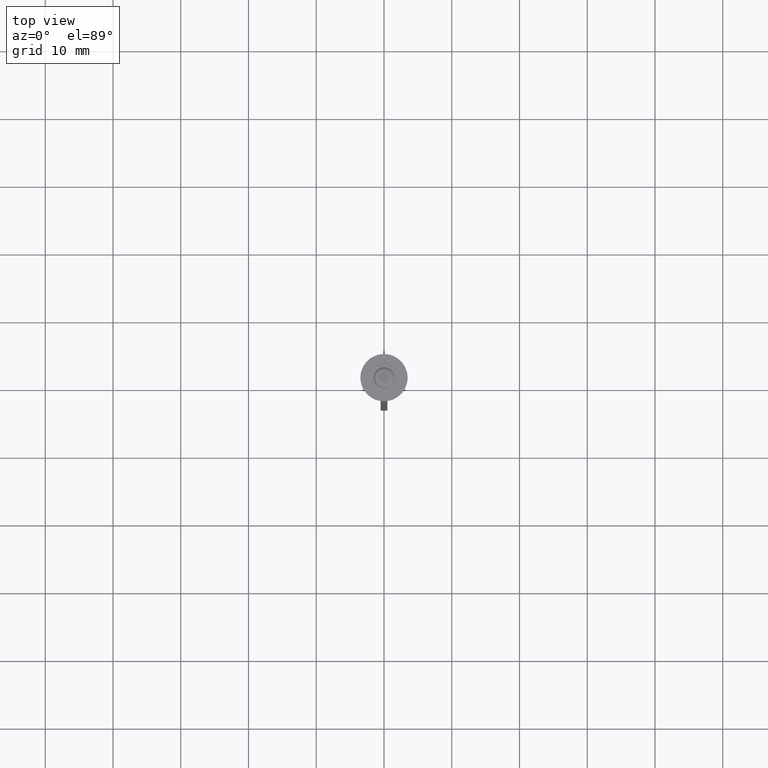
[diagram: clean part render]
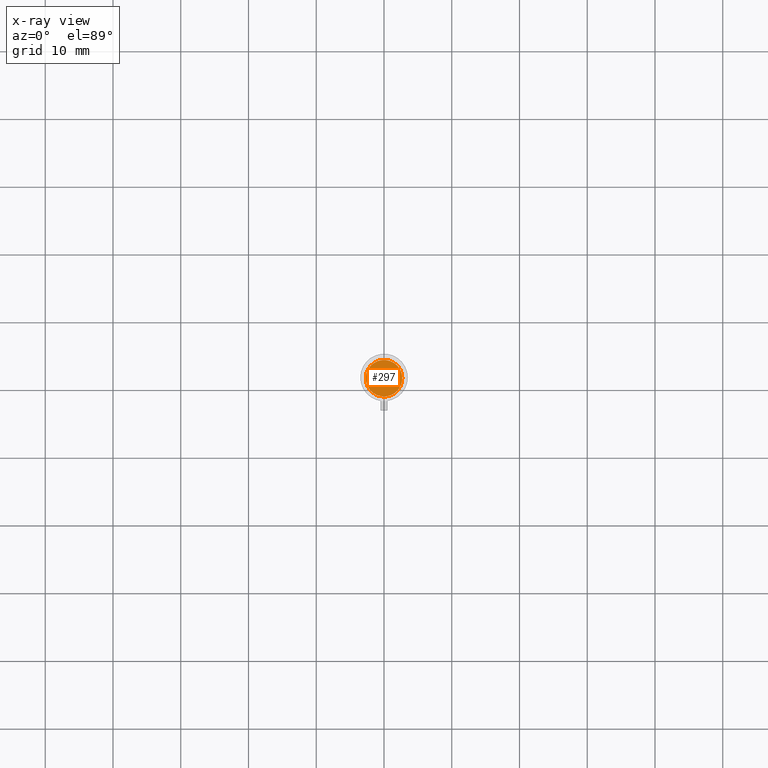
[diagram: x-ray — body ghosted, one internal face saturated and labeled with its STEP entity id]
A machine part, top view, then the same camera in x-ray: the body is ghosted and one INTERNAL B-rep face — a face not visible from any outside direction — is saturated and labeled: STEP entity #297.
In plain terms, the highlighted planar face has unit normal (0, 0, -1).
Its self-contained STEP definition (entity closure, byte-faithful):
#297 = ADVANCED_FACE ( 'NONE', ( #807 ), #1130, .F. ) ;
#465 = DIRECTION ( 'NONE',  ( -1.000000000000000000, 0.000000000000000000, 0.000000000000000000 ) ) ;
#602 = DIRECTION ( 'NONE',  ( 0.000000000000000000, 0.000000000000000000, -1.000000000000000000 ) ) ;
#717 = EDGE_CURVE ( 'NONE', #1238, #1464, #1471, .T. ) ;
#788 = CARTESIAN_POINT ( 'NONE',  ( 0.000000000000000000, 0.000000000000000000, -5.500000000000000000 ) ) ;
#807 = FACE_OUTER_BOUND ( 'NONE', #2141, .T. ) ;
#847 = ORIENTED_EDGE ( 'NONE', *, *, #717, .T. ) ;
#1051 = AXIS2_PLACEMENT_3D ( 'NONE', #1838, #602, #1673 ) ;
#1130 = PLANE ( 'NONE',  #1051 ) ;
#1238 = VERTEX_POINT ( 'NONE', #1303 ) ;
#1303 = CARTESIAN_POINT ( 'NONE',  ( 2.700000000000002398, 3.490243377569959512E-16, -5.500000000000000000 ) ) ;
#1323 = DIRECTION ( 'NONE',  ( -0.000000000000000000, -0.000000000000000000, 1.000000000000000000 ) ) ;
#1392 = ORIENTED_EDGE ( 'NONE', *, *, #1492, .T. ) ;
#1464 = VERTEX_POINT ( 'NONE', #1687 ) ;
#1471 = CIRCLE ( 'NONE', #2190, 2.700000000000002398 ) ;
#1488 = DIRECTION ( 'NONE',  ( -0.000000000000000000, -0.000000000000000000, 1.000000000000000000 ) ) ;
#1492 = EDGE_CURVE ( 'NONE', #1464, #1238, #2161, .T. ) ;
#1673 = DIRECTION ( 'NONE',  ( -1.000000000000000000, 0.000000000000000000, -0.000000000000000000 ) ) ;
#1687 = CARTESIAN_POINT ( 'NONE',  ( -2.700000000000002398, 0.000000000000000000, -5.500000000000000000 ) ) ;
#1838 = CARTESIAN_POINT ( 'NONE',  ( 0.000000000000000000, 0.000000000000000000, -5.500000000000000000 ) ) ;
#2079 = CARTESIAN_POINT ( 'NONE',  ( 0.000000000000000000, 0.000000000000000000, -5.500000000000000000 ) ) ;
#2141 = EDGE_LOOP ( 'NONE', ( #1392, #847 ) ) ;
#2161 = CIRCLE ( 'NONE', #2195, 2.700000000000002398 ) ;
#2182 = DIRECTION ( 'NONE',  ( -1.000000000000000000, 0.000000000000000000, 0.000000000000000000 ) ) ;
#2190 = AXIS2_PLACEMENT_3D ( 'NONE', #788, #1488, #2182 ) ;
#2195 = AXIS2_PLACEMENT_3D ( 'NONE', #2079, #1323, #465 ) ;